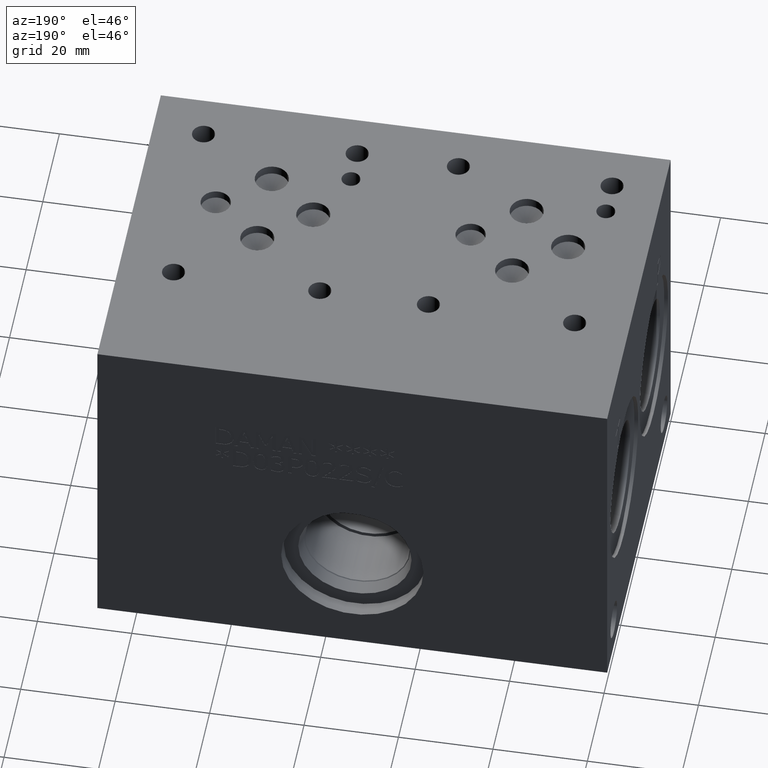
[diagram: clean part render]
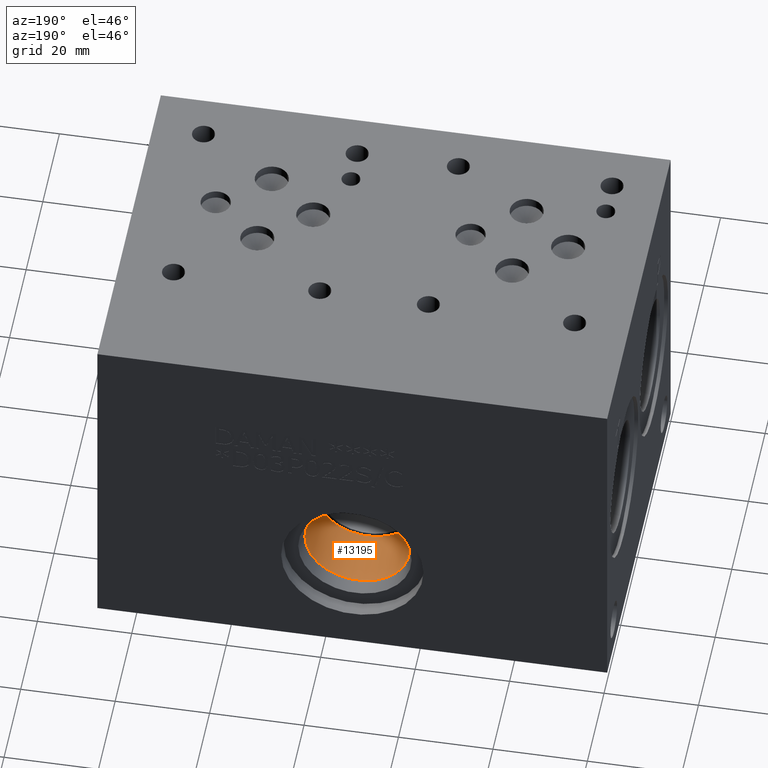
[diagram: same view with one face highlighted and labeled with its STEP entity id]
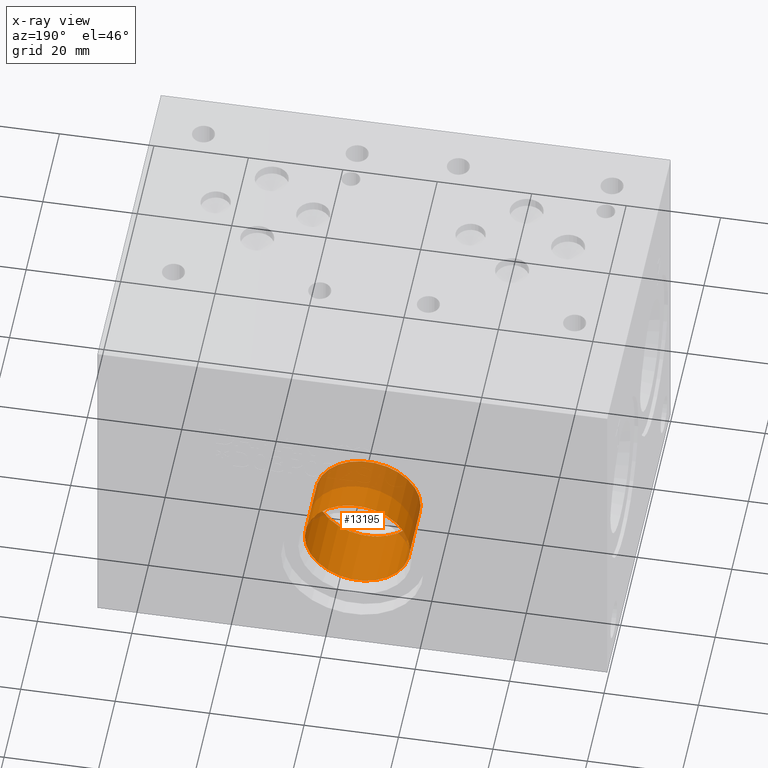
[diagram: x-ray of the same camera — body ghosted, the highlighted face saturated]
A machine part, auxiliary view. The second image highlights one B-rep face of the part: STEP entity #13195.
The next image is the same camera in x-ray: the body ghosted, the highlighted face saturated — about 31% of this face is hidden behind the body in this view.
In plain terms, the highlighted cylindrical surface (bore or boss wall) has radius 11.115 mm, axis along (0, -1, 0).
Its self-contained STEP definition (entity closure, byte-faithful):
#79=CYLINDRICAL_SURFACE('',#13758,11.115);
#198=CIRCLE('',#13756,11.115);
#199=CIRCLE('',#13757,11.115);
#200=CIRCLE('',#13759,11.115);
#201=CIRCLE('',#13760,11.115);
#1643=FACE_OUTER_BOUND('',#2394,.T.);
#2394=EDGE_LOOP('',(#10916,#10917,#10918,#10919,#10920,#10921));
#3656=LINE('',#22305,#4832);
#4832=VECTOR('',#15998,11.115);
#5936=VERTEX_POINT('',#22298);
#5937=VERTEX_POINT('',#22300);
#5938=VERTEX_POINT('',#22304);
#5939=VERTEX_POINT('',#22306);
#7683=EDGE_CURVE('',#5936,#5937,#198,.T.);
#7684=EDGE_CURVE('',#5937,#5936,#199,.T.);
#7685=EDGE_CURVE('',#5936,#5938,#3656,.T.);
#7686=EDGE_CURVE('',#5938,#5939,#200,.T.);
#7687=EDGE_CURVE('',#5939,#5938,#201,.T.);
#10916=ORIENTED_EDGE('',*,*,#7684,.F.);
#10917=ORIENTED_EDGE('',*,*,#7683,.F.);
#10918=ORIENTED_EDGE('',*,*,#7685,.T.);
#10919=ORIENTED_EDGE('',*,*,#7686,.T.);
#10920=ORIENTED_EDGE('',*,*,#7687,.T.);
#10921=ORIENTED_EDGE('',*,*,#7685,.F.);
#13195=ADVANCED_FACE('',(#1643),#79,.F.);
#13756=AXIS2_PLACEMENT_3D('',#22301,#15992,#15993);
#13757=AXIS2_PLACEMENT_3D('',#22302,#15994,#15995);
#13758=AXIS2_PLACEMENT_3D('',#22303,#15996,#15997);
#13759=AXIS2_PLACEMENT_3D('',#22307,#15999,#16000);
#13760=AXIS2_PLACEMENT_3D('',#22308,#16001,#16002);
#15992=DIRECTION('center_axis',(0.,-1.,0.));
#15993=DIRECTION('ref_axis',(1.,0.,0.));
#15994=DIRECTION('center_axis',(0.,-1.,0.));
#15995=DIRECTION('ref_axis',(1.,0.,0.));
#15996=DIRECTION('center_axis',(0.,-1.,0.));
#15997=DIRECTION('ref_axis',(1.,0.,0.));
#15998=DIRECTION('',(0.,-1.,0.));
#15999=DIRECTION('center_axis',(0.,-1.,0.));
#16000=DIRECTION('ref_axis',(1.,0.,0.));
#16001=DIRECTION('center_axis',(0.,-1.,0.));
#16002=DIRECTION('ref_axis',(1.,0.,0.));
#22298=CARTESIAN_POINT('',(42.86,70.14,23.0124));
#22300=CARTESIAN_POINT('',(65.09,70.14,23.0124));
#22301=CARTESIAN_POINT('Origin',(53.975,70.14,23.0124));
#22302=CARTESIAN_POINT('Origin',(53.975,70.14,23.0124));
#22303=CARTESIAN_POINT('Origin',(53.975,63.6425,23.0124));
#22304=CARTESIAN_POINT('',(42.86,57.145,23.0124));
#22305=CARTESIAN_POINT('',(42.86,63.6425,23.0124));
#22306=CARTESIAN_POINT('',(65.09,57.145,23.0124));
#22307=CARTESIAN_POINT('Origin',(53.975,57.145,23.0124));
#22308=CARTESIAN_POINT('Origin',(53.975,57.145,23.0124));